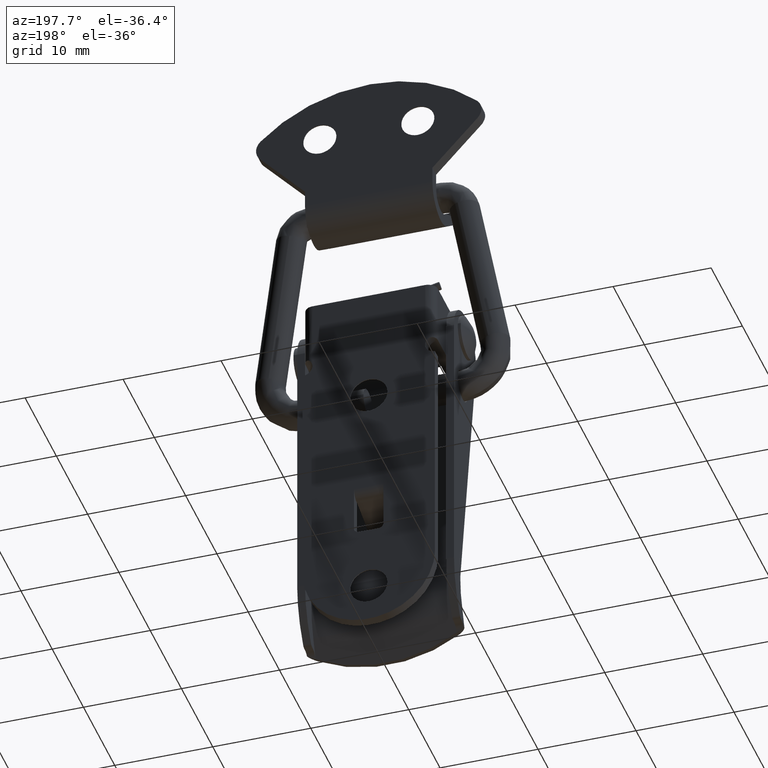
[diagram: clean part render]
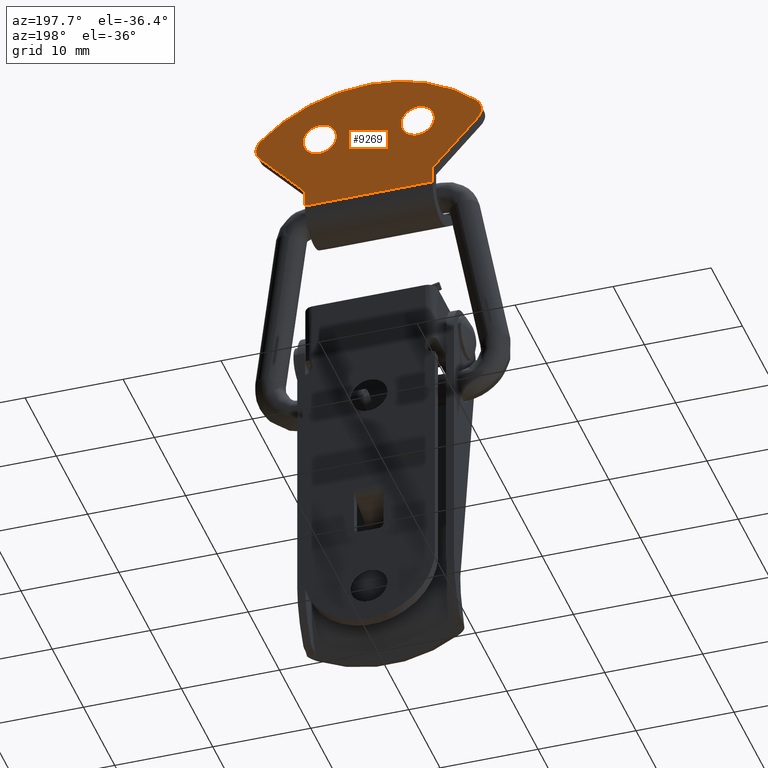
[diagram: same view with one face highlighted and labeled with its STEP entity id]
A machine part, auxiliary view. The second image highlights one B-rep face of the part: STEP entity #9269.
In plain terms, the highlighted face is a freeform B-spline surface patch.
Its self-contained STEP definition (entity closure, byte-faithful):
#8027=CARTESIAN_POINT('',(2.800000000000000,5.000000000002172,5.599999999994251));
#8028=VERTEX_POINT('',#8027);
#8029=CARTESIAN_POINT('',(2.800000000000000,5.970428395239454,5.904196027467674));
#8030=VERTEX_POINT('',#8029);
#8031=CARTESIAN_POINT('',(2.800000000000000,5.000000000002172,5.599999999994251));
#8032=CARTESIAN_POINT('',(2.799999999999999,5.532891709732820,5.599999999993640));
#8033=CARTESIAN_POINT('',(2.800000000000000,5.970428395239455,5.904196027467674));
#8041=(BOUNDED_CURVE()B_SPLINE_CURVE(2,(#8031,#8032,#8033),.UNSPECIFIED.,.F.,.U.)B_SPLINE_CURVE_WITH_KNOTS((3,3),(0.500000000000000,0.598090608939490),.UNSPECIFIED.)CURVE()GEOMETRIC_REPRESENTATION_ITEM()RATIONAL_B_SPLINE_CURVE((1.0,0.885079703249365,0.860340221600943))REPRESENTATION_ITEM(''));
#8042=EDGE_CURVE('',#8028,#8030,#8041,.T.);
#8115=CARTESIAN_POINT('',(2.800000000000000,6.694759467329464,7.166619536990408));
#8116=VERTEX_POINT('',#8115);
#8122=CARTESIAN_POINT('',(2.800000000000000,5.000000000006068,8.999999999994250));
#8123=VERTEX_POINT('',#8122);
#8124=CARTESIAN_POINT('',(2.800000000000000,6.694759467329464,7.166619536990408));
#8125=CARTESIAN_POINT('',(2.800000000000000,6.700000000004043,7.233206817813472));
#8126=CARTESIAN_POINT('',(2.800000000000000,6.700000000004120,7.299999999992302));
#8127=CARTESIAN_POINT('',(2.800000000000000,6.700000000006068,8.999999999992303));
#8128=CARTESIAN_POINT('',(2.800000000000000,5.000000000006068,8.999999999994250));
#8136=(BOUNDED_CURVE()B_SPLINE_CURVE(2,(#8124,#8125,#8126,#8127,#8128),.UNSPECIFIED.,.F.,.U.)B_SPLINE_CURVE_WITH_KNOTS((3,2,3),(0.736331300579246,0.750000000000000,1.0),.UNSPECIFIED.)CURVE()GEOMETRIC_REPRESENTATION_ITEM()RATIONAL_B_SPLINE_CURVE((0.969723356060121,0.983986122518647,1.0,0.707106781186548,1.0))REPRESENTATION_ITEM(''));
#8137=EDGE_CURVE('',#8116,#8123,#8136,.T.);
#8139=CARTESIAN_POINT('',(2.800000000000000,5.000000000006068,8.999999999994250));
#8140=CARTESIAN_POINT('',(2.800000000000000,3.300000000006068,8.999999999996199));
#8141=CARTESIAN_POINT('',(2.800000000000000,3.300000000004120,7.299999999996198));
#8142=CARTESIAN_POINT('',(2.800000000000000,3.300000000002173,5.599999999996197));
#8143=CARTESIAN_POINT('',(2.800000000000000,5.000000000002172,5.599999999994251));
#8151=(BOUNDED_CURVE()B_SPLINE_CURVE(2,(#8139,#8140,#8141,#8142,#8143),.UNSPECIFIED.,.F.,.U.)B_SPLINE_CURVE_WITH_KNOTS((3,2,3),(0.0,0.250000000000000,0.500000000000000),.UNSPECIFIED.)CURVE()GEOMETRIC_REPRESENTATION_ITEM()RATIONAL_B_SPLINE_CURVE((1.0,0.707106781186548,1.0,0.707106781186548,1.0))REPRESENTATION_ITEM(''));
#8152=EDGE_CURVE('',#8123,#8028,#8151,.T.);
#8171=CARTESIAN_POINT('',(2.800000000000000,5.970428395239455,5.904196027467674));
#8172=CARTESIAN_POINT('',(2.800000000000001,6.631580944371510,6.363860292573621));
#8173=CARTESIAN_POINT('',(2.800000000000000,6.694759467329464,7.166619536990408));
#8181=(BOUNDED_CURVE()B_SPLINE_CURVE(2,(#8171,#8172,#8173),.UNSPECIFIED.,.F.,.U.)B_SPLINE_CURVE_WITH_KNOTS((3,3),(0.598090608939489,0.736331300579246),.UNSPECIFIED.)CURVE()GEOMETRIC_REPRESENTATION_ITEM()RATIONAL_B_SPLINE_CURVE((0.860340221600944,0.825474467469508,0.969723356060121))REPRESENTATION_ITEM(''));
#8182=EDGE_CURVE('',#8030,#8116,#8181,.T.);
#8375=CARTESIAN_POINT('',(2.800000000000000,-6.696829157294285,7.196217482486008));
#8376=VERTEX_POINT('',#8375);
#8382=CARTESIAN_POINT('',(2.800000000000000,-4.999999999995750,5.600000000000000));
#8383=VERTEX_POINT('',#8382);
#8384=CARTESIAN_POINT('',(2.800000000000000,-4.999999999995750,5.600000000000000));
#8385=CARTESIAN_POINT('',(2.800000000000001,-6.599200313159952,5.600000000000000));
#8386=CARTESIAN_POINT('',(2.799999999999999,-6.696829157294285,7.196217482486008));
#8394=(BOUNDED_CURVE()B_SPLINE_CURVE(2,(#8384,#8385,#8386),.UNSPECIFIED.,.F.,.U.)B_SPLINE_CURVE_WITH_KNOTS((3,3),(0.500000000000000,0.739332962179992),.UNSPECIFIED.)CURVE()GEOMETRIC_REPRESENTATION_ITEM()RATIONAL_B_SPLINE_CURVE((1.0,0.719603993355775,0.976072041540375))REPRESENTATION_ITEM(''));
#8395=EDGE_CURVE('',#8383,#8376,#8394,.T.);
#8397=CARTESIAN_POINT('',(2.800000000000000,-4.402249443476432,5.708555916099831));
#8398=VERTEX_POINT('',#8397);
#8399=CARTESIAN_POINT('',(2.799999999999999,-4.402249443476431,5.708555916099831));
#8400=CARTESIAN_POINT('',(2.799999999999999,-4.691267443623063,5.600000000000001));
#8401=CARTESIAN_POINT('',(2.800000000000000,-4.999999999995750,5.600000000000000));
#8409=(BOUNDED_CURVE()B_SPLINE_CURVE(2,(#8399,#8400,#8401),.UNSPECIFIED.,.F.,.U.)B_SPLINE_CURVE_WITH_KNOTS((3,3),(0.440284170888261,0.500000000000000),.UNSPECIFIED.)CURVE()GEOMETRIC_REPRESENTATION_ITEM()RATIONAL_B_SPLINE_CURVE((0.893499554622734,0.930038554389395,1.0))REPRESENTATION_ITEM(''));
#8410=EDGE_CURVE('',#8398,#8383,#8409,.T.);
#8460=CARTESIAN_POINT('',(2.800000000000000,-4.999999999995750,9.0));
#8461=VERTEX_POINT('',#8460);
#8462=CARTESIAN_POINT('',(2.800000000000000,-4.999999999995750,9.0));
#8463=CARTESIAN_POINT('',(2.800000000000000,-3.299999999995750,9.000000000000002));
#8464=CARTESIAN_POINT('',(2.800000000000000,-3.299999999995750,7.300000000000000));
#8465=CARTESIAN_POINT('',(2.800000000000000,-3.299999999995749,6.122563687404280));
#8466=CARTESIAN_POINT('',(2.799999999999999,-4.402249443476431,5.708555916099831));
#8474=(BOUNDED_CURVE()B_SPLINE_CURVE(2,(#8462,#8463,#8464,#8465,#8466),.UNSPECIFIED.,.F.,.U.)B_SPLINE_CURVE_WITH_KNOTS((3,2,3),(0.0,0.250000000000000,0.440284170888261),.UNSPECIFIED.)CURVE()GEOMETRIC_REPRESENTATION_ITEM()RATIONAL_B_SPLINE_CURVE((1.0,0.707106781186548,1.0,0.777068226797153,0.893499554622734))REPRESENTATION_ITEM(''));
#8475=EDGE_CURVE('',#8461,#8398,#8474,.T.);
#8477=CARTESIAN_POINT('',(2.800000000000000,-6.696829157294285,7.196217482486008));
#8478=CARTESIAN_POINT('',(2.799999999999999,-6.699999999995750,7.248060302086808));
#8479=CARTESIAN_POINT('',(2.800000000000000,-6.699999999995750,7.300000000000000));
#8480=CARTESIAN_POINT('',(2.800000000000000,-6.699999999995751,9.000000000000002));
#8481=CARTESIAN_POINT('',(2.800000000000000,-4.999999999995750,9.0));
#8489=(BOUNDED_CURVE()B_SPLINE_CURVE(2,(#8477,#8478,#8479,#8480,#8481),.UNSPECIFIED.,.F.,.U.)B_SPLINE_CURVE_WITH_KNOTS((3,2,3),(0.739332962179992,0.750000000000000,1.0),.UNSPECIFIED.)CURVE()GEOMETRIC_REPRESENTATION_ITEM()RATIONAL_B_SPLINE_CURVE((0.976072041540376,0.987502787830773,1.0,0.707106781186548,1.0))REPRESENTATION_ITEM(''));
#8490=EDGE_CURVE('',#8376,#8461,#8489,.T.);
#8823=CARTESIAN_POINT('',(2.800000000000000,6.500000000000730,1.300000000000694));
#8824=VERTEX_POINT('',#8823);
#8830=CARTESIAN_POINT('',(2.800000000000000,6.499999999999780,-0.400000000000120));
#8831=VERTEX_POINT('',#8830);
#8832=CARTESIAN_POINT('',(2.800000000000000,6.500000000000730,1.300000000000694));
#8833=CARTESIAN_POINT('',(2.800000000000000,6.499999999999780,-0.400000000000120));
#8834=QUASI_UNIFORM_CURVE('',1,(#8832,#8833),.UNSPECIFIED.,.F.,.U.);
#8835=EDGE_CURVE('',#8824,#8831,#8834,.T.);
#8867=CARTESIAN_POINT('',(2.800000000000000,11.101885385439440,6.282233525183210));
#8868=VERTEX_POINT('',#8867);
#8874=CARTESIAN_POINT('',(2.800000000000000,11.101885385439440,6.282233525183210));
#8875=CARTESIAN_POINT('',(2.800000000000000,6.500000000000730,1.300000000000694));
#8876=QUASI_UNIFORM_CURVE('',1,(#8874,#8875),.UNSPECIFIED.,.F.,.U.);
#8877=EDGE_CURVE('',#8868,#8824,#8876,.T.);
#8897=CARTESIAN_POINT('',(2.800000000000000,-6.499999999999280,1.300000000002200));
#8898=VERTEX_POINT('',#8897);
#8904=CARTESIAN_POINT('',(2.800000000000000,-11.101885385467600,6.282233525123899));
#8905=VERTEX_POINT('',#8904);
#8906=CARTESIAN_POINT('',(2.800000000000000,-6.499999999999280,1.300000000002200));
#8907=CARTESIAN_POINT('',(2.800000000000000,-11.101885385467600,6.282233525123899));
#8908=QUASI_UNIFORM_CURVE('',1,(#8906,#8907),.UNSPECIFIED.,.F.,.U.);
#8909=EDGE_CURVE('',#8898,#8905,#8908,.T.);
#8939=CARTESIAN_POINT('',(2.800000000000000,-6.500000000000220,-0.400000000000120));
#8940=VERTEX_POINT('',#8939);
#8956=CARTESIAN_POINT('',(2.800000000000000,-6.500000000000220,-0.400000000000120));
#8957=CARTESIAN_POINT('',(2.800000000000000,-6.499999999999280,1.300000000002200));
#8958=QUASI_UNIFORM_CURVE('',1,(#8956,#8957),.UNSPECIFIED.,.F.,.U.);
#8959=EDGE_CURVE('',#8940,#8898,#8958,.T.);
#9002=CARTESIAN_POINT('',(2.800000000000000,-11.034482758642181,8.386206896525899));
#9003=VERTEX_POINT('',#9002);
#9004=CARTESIAN_POINT('',(2.800000000000000,-11.034482758642190,8.386206896525906));
#9005=CARTESIAN_POINT('',(2.800000000000001,-12.104218980142171,7.367410495092320));
#9006=CARTESIAN_POINT('',(2.800000000000000,-11.101885385467609,6.282233525123893));
#9014=(BOUNDED_CURVE()B_SPLINE_CURVE(2,(#9004,#9005,#9006),.UNSPECIFIED.,.F.,.U.)CURVE()GEOMETRIC_REPRESENTATION_ITEM()QUASI_UNIFORM_CURVE()RATIONAL_B_SPLINE_CURVE((1.0,0.712488045773267,1.0))REPRESENTATION_ITEM(''));
#9015=EDGE_CURVE('',#9003,#8905,#9014,.T.);
#9056=CARTESIAN_POINT('',(2.800000000000000,11.034482758599340,8.386206896580209));
#9057=VERTEX_POINT('',#9056);
#9063=CARTESIAN_POINT('',(2.800000000000000,11.101885385439450,6.282233525183202));
#9064=CARTESIAN_POINT('',(2.800000000000000,12.104218980099816,7.367410495156217));
#9065=CARTESIAN_POINT('',(2.800000000000000,11.034482758599340,8.386206896580212));
#9073=(BOUNDED_CURVE()B_SPLINE_CURVE(2,(#9063,#9064,#9065),.UNSPECIFIED.,.F.,.U.)CURVE()GEOMETRIC_REPRESENTATION_ITEM()QUASI_UNIFORM_CURVE()RATIONAL_B_SPLINE_CURVE((1.0,0.712488045774754,1.0))REPRESENTATION_ITEM(''));
#9074=EDGE_CURVE('',#8868,#9057,#9073,.T.);
#9121=CARTESIAN_POINT('',(2.800000000000000,11.034482758599340,8.386206896580216));
#9122=CARTESIAN_POINT('',(2.799999999999999,-4.728196E-011,18.895238095239623));
#9123=CARTESIAN_POINT('',(2.800000000000000,-11.034482758642181,8.386206896525906));
#9131=(BOUNDED_CURVE()B_SPLINE_CURVE(2,(#9121,#9122,#9123),.UNSPECIFIED.,.F.,.U.)CURVE()GEOMETRIC_REPRESENTATION_ITEM()QUASI_UNIFORM_CURVE()RATIONAL_B_SPLINE_CURVE((1.0,0.724137931034478,1.0))REPRESENTATION_ITEM(''));
#9132=EDGE_CURVE('',#9057,#9003,#9131,.T.);
#9188=CARTESIAN_POINT('',(2.800000000000000,6.499999999999780,-0.400000000000120));
#9189=CARTESIAN_POINT('',(2.800000000000000,-6.500000000000220,-0.400000000000120));
#9190=QUASI_UNIFORM_CURVE('',1,(#9188,#9189),.UNSPECIFIED.,.F.,.U.);
#9191=EDGE_CURVE('',#8831,#8940,#9190,.T.);
#9242=CARTESIAN_POINT('',(2.800000000000000,-12.648525785130619,13.459340222241559));
#9243=CARTESIAN_POINT('',(2.800000000000000,-12.648525785130619,-1.059340340257537));
#9244=CARTESIAN_POINT('',(2.800000000000000,12.648525650177630,13.459340222241559));
#9245=CARTESIAN_POINT('',(2.800000000000000,12.648525650177630,-1.059340340257537));
#9246=B_SPLINE_SURFACE_WITH_KNOTS('',1,1,((#9242,#9244),(#9243,#9245)),.UNSPECIFIED.,.F.,.F.,.U.,(2,2),(2,2),(0.0,14.518680562499100),(0.0,25.297051435308259),.UNSPECIFIED.);
#9247=ORIENTED_EDGE('',*,*,#8959,.F.);
#9248=ORIENTED_EDGE('',*,*,#9191,.F.);
#9249=ORIENTED_EDGE('',*,*,#8835,.F.);
#9250=ORIENTED_EDGE('',*,*,#8877,.F.);
#9251=ORIENTED_EDGE('',*,*,#9074,.T.);
#9252=ORIENTED_EDGE('',*,*,#9132,.T.);
#9253=ORIENTED_EDGE('',*,*,#9015,.T.);
#9254=ORIENTED_EDGE('',*,*,#8909,.F.);
#9255=EDGE_LOOP('',(#9247,#9248,#9249,#9250,#9251,#9252,#9253,#9254));
#9256=FACE_OUTER_BOUND('',#9255,.T.);
#9257=ORIENTED_EDGE('',*,*,#8152,.F.);
#9258=ORIENTED_EDGE('',*,*,#8137,.F.);
#9259=ORIENTED_EDGE('',*,*,#8182,.F.);
#9260=ORIENTED_EDGE('',*,*,#8042,.F.);
#9261=EDGE_LOOP('',(#9257,#9258,#9259,#9260));
#9262=FACE_BOUND('',#9261,.T.);
#9263=ORIENTED_EDGE('',*,*,#8395,.T.);
#9264=ORIENTED_EDGE('',*,*,#8490,.T.);
#9265=ORIENTED_EDGE('',*,*,#8475,.T.);
#9266=ORIENTED_EDGE('',*,*,#8410,.T.);
#9267=EDGE_LOOP('',(#9263,#9264,#9265,#9266));
#9268=FACE_BOUND('',#9267,.T.);
#9269=ADVANCED_FACE('',(#9256,#9262,#9268),#9246,.T.);